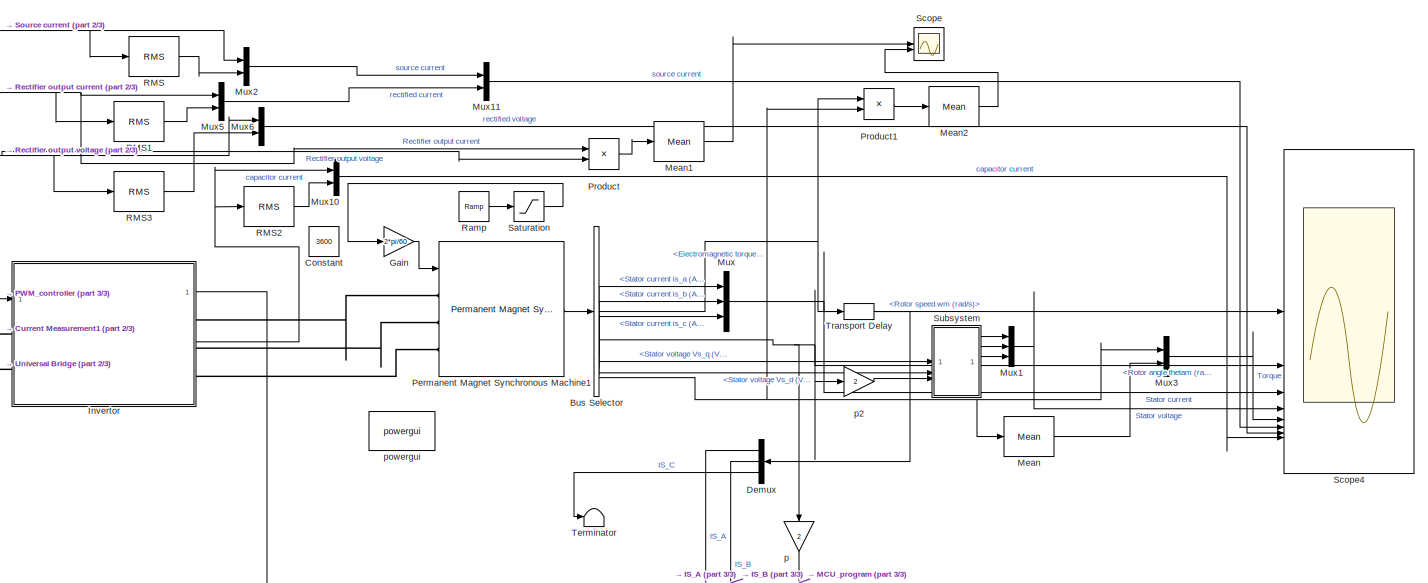
[diagram: root canvas - part 1/3, top right region]
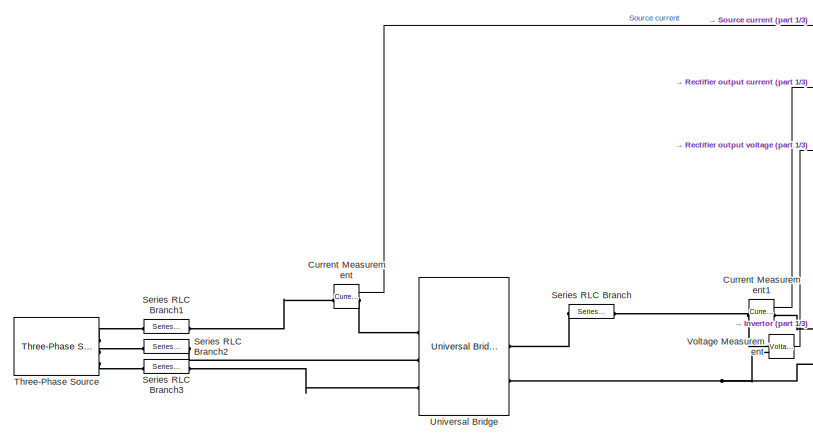
[diagram: root canvas - part 2/3, top left region]
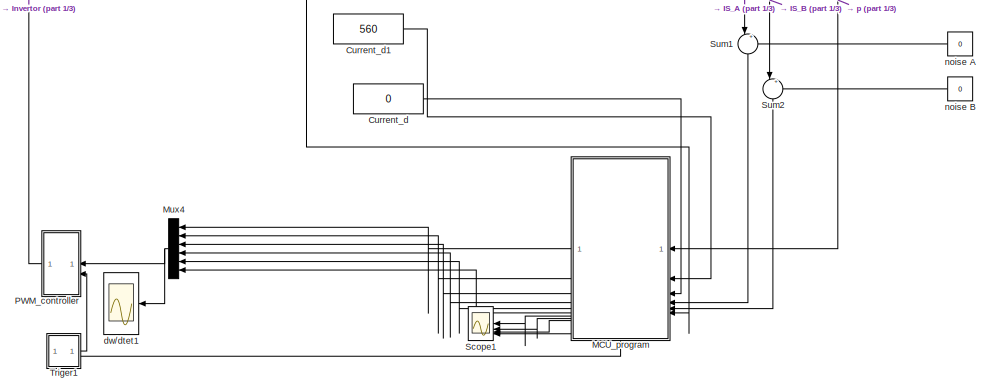
[diagram: root canvas - part 3/3, bottom center region]
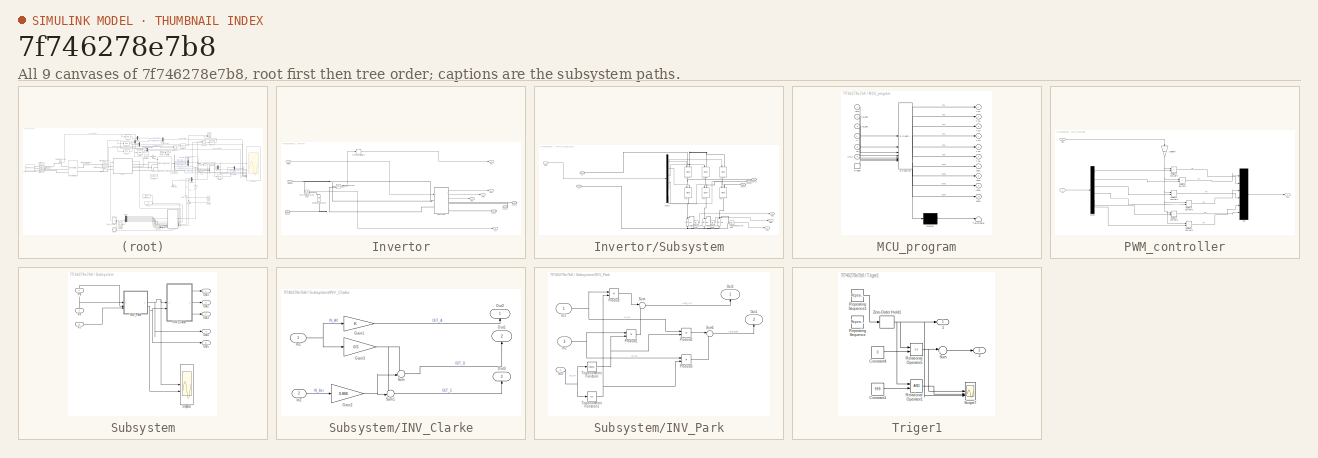
[diagram: thumbnail index - all 9 canvases of the model, root first then tree order]
MODEL slx_7f746278e7b8
KIND model
CONFIG AbsTol = auto
CONFIG EnableMultiTasking = on
CONFIG FixedStep = auto
CONFIG MaxStep = 1e-7
CONFIG MinStep = auto
CONFIG RelTol = 1e-3
CONFIG SampleTimeConstraint = Unconstrained
CONFIG SolverName = ode23tb
CONFIG StartTime = 0.0
CONFIG StopTime = 0.25
BLOCK [BusSelector] Bus Selector
  OutputSignals = Rotor speed wm (rad/s),Rotor angle thetam (rad),Stator current is_a (A),Stator current is_b (A),Stator current is_c (A),Stator voltage Vs_q (V),Stator voltage Vs_d (V),Electromagnetic torque Te (N*m)
BLOCK [Constant] Constant
  Value = 3600
BLOCK [Reference] Current Measurement  REF=spsCurrentMeasurementLib/Current Measurement
  SourceBlock = spsCurrentMeasurementLib/Current Measurement
  SourceType = Current Measurement
  UserDataPersistent = on
BLOCK [Reference] Current Measurement1  REF=spsCurrentMeasurementLib/Current Measurement
  SourceBlock = spsCurrentMeasurementLib/Current Measurement
  SourceType = Current Measurement
  UserDataPersistent = on
BLOCK [Constant] Current_d
  Value = 0
BLOCK [Constant] Current_d1
  Value = 560
BLOCK [Demux] Demux
  NameLocation = top
  Outputs = 3
BLOCK [Gain] Gain
  Gain = 2*pi/60
BLOCK [SubSystem] Invertor
BLOCK [PMIOPort] Invertor/Conn1
  Side = Right
BLOCK [PMIOPort] Invertor/Conn2
  Port = 2
  Side = Right
BLOCK [PMIOPort] Invertor/Conn3
  Port = 3
  Side = Right
BLOCK [PMIOPort] Invertor/Conn4
  NameLocation = top
  Port = 4
  Side = Left
BLOCK [PMIOPort] Invertor/Conn5
  NameLocation = top
  Port = 5
  Side = Left
BLOCK [Reference] Invertor/Current Measurement1  REF=spsCurrentMeasurementLib/Current Measurement
  SourceBlock = spsCurrentMeasurementLib/Current Measurement
  SourceType = Current Measurement
  UserDataPersistent = on
BLOCK [Inport] Invertor/Gates
BLOCK [Outport] Invertor/I_C
  Port = 5
  VectorParamsAs1DForOutWhenUnconnected = off
BLOCK [Reference] Invertor/Series RLC Branch  REF=spsSeriesRLCBranchLib/Series RLC Branch
  NameLocation = left
  SourceBlock = spsSeriesRLCBranchLib/Series RLC Branch
  SourceType = Series RLC Branch
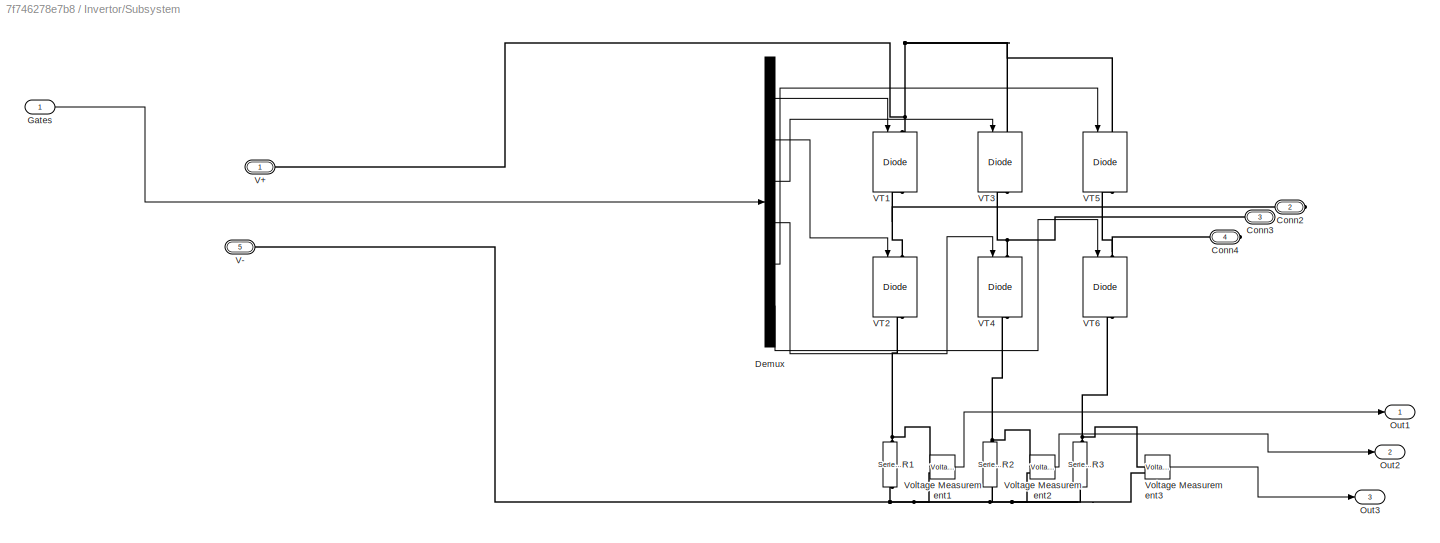
BLOCK [SubSystem] Invertor/Subsystem
BLOCK [PMIOPort] Invertor/Subsystem/Conn2
  Port = 2
  Side = Right
BLOCK [PMIOPort] Invertor/Subsystem/Conn3
  Port = 3
  Side = Right
BLOCK [PMIOPort] Invertor/Subsystem/Conn4
  Port = 4
  Side = Right
BLOCK [Demux] Invertor/Subsystem/Demux
  Outputs = 6
BLOCK [Inport] Invertor/Subsystem/Gates
BLOCK [Outport] Invertor/Subsystem/Out1
  VectorParamsAs1DForOutWhenUnconnected = off
BLOCK [Outport] Invertor/Subsystem/Out2
  Port = 2
  VectorParamsAs1DForOutWhenUnconnected = off
BLOCK [Outport] Invertor/Subsystem/Out3
  Port = 3
  VectorParamsAs1DForOutWhenUnconnected = off
BLOCK [Reference] Invertor/Subsystem/R1  REF=spsSeriesRLCBranchLib/Series RLC Branch
  NameLocation = right
  SourceBlock = spsSeriesRLCBranchLib/Series RLC Branch
  SourceType = Series RLC Branch
BLOCK [Reference] Invertor/Subsystem/R2  REF=spsSeriesRLCBranchLib/Series RLC Branch
  NameLocation = right
  SourceBlock = spsSeriesRLCBranchLib/Series RLC Branch
  SourceType = Series RLC Branch
BLOCK [Reference] Invertor/Subsystem/R3  REF=spsSeriesRLCBranchLib/Series RLC Branch
  NameLocation = right
  SourceBlock = spsSeriesRLCBranchLib/Series RLC Branch
  SourceType = Series RLC Branch
BLOCK [PMIOPort] Invertor/Subsystem/V+
  Side = Left
BLOCK [PMIOPort] Invertor/Subsystem/V-
  Port = 5
  Side = Left
BLOCK [Reference] Invertor/Subsystem/VT1  REF=spsIGBTDiodeLib/IGBT//Diode
  NameLocation = left
  SourceBlock = spsIGBTDiodeLib/IGBT//Diode
  SourceType = IGBT/Diode
BLOCK [Reference] Invertor/Subsystem/VT2  REF=spsIGBTDiodeLib/IGBT//Diode
  NameLocation = left
  SourceBlock = spsIGBTDiodeLib/IGBT//Diode
  SourceType = IGBT/Diode
BLOCK [Reference] Invertor/Subsystem/VT3  REF=spsIGBTDiodeLib/IGBT//Diode
  NameLocation = left
  SourceBlock = spsIGBTDiodeLib/IGBT//Diode
  SourceType = IGBT/Diode
BLOCK [Reference] Invertor/Subsystem/VT4  REF=spsIGBTDiodeLib/IGBT//Diode
  NameLocation = left
  SourceBlock = spsIGBTDiodeLib/IGBT//Diode
  SourceType = IGBT/Diode
BLOCK [Reference] Invertor/Subsystem/VT5  REF=spsIGBTDiodeLib/IGBT//Diode
  NameLocation = left
  SourceBlock = spsIGBTDiodeLib/IGBT//Diode
  SourceType = IGBT/Diode
BLOCK [Reference] Invertor/Subsystem/VT6  REF=spsIGBTDiodeLib/IGBT//Diode
  NameLocation = left
  SourceBlock = spsIGBTDiodeLib/IGBT//Diode
  SourceType = IGBT/Diode
BLOCK [Reference] Invertor/Subsystem/Voltage Measurement1  REF=spsVoltageMeasurementLib/Voltage Measurement
  SourceBlock = spsVoltageMeasurementLib/Voltage Measurement
  SourceType = Voltage Measurement
  UserDataPersistent = on
BLOCK [Reference] Invertor/Subsystem/Voltage Measurement2  REF=spsVoltageMeasurementLib/Voltage Measurement
  SourceBlock = spsVoltageMeasurementLib/Voltage Measurement
  SourceType = Voltage Measurement
  UserDataPersistent = on
BLOCK [Reference] Invertor/Subsystem/Voltage Measurement3  REF=spsVoltageMeasurementLib/Voltage Measurement
  SourceBlock = spsVoltageMeasurementLib/Voltage Measurement
  SourceType = Voltage Measurement
  UserDataPersistent = on
BLOCK [TransportDelay] Invertor/Transport Delay1
  DelayTime = 26e-6
BLOCK [Outport] Invertor/URA
  Port = 2
  VectorParamsAs1DForOutWhenUnconnected = off
BLOCK [Outport] Invertor/URB
  Port = 3
  VectorParamsAs1DForOutWhenUnconnected = off
BLOCK [Outport] Invertor/URC
  Port = 4
  VectorParamsAs1DForOutWhenUnconnected = off
BLOCK [Outport] Invertor/Vdc
  VectorParamsAs1DForOutWhenUnconnected = off
BLOCK [Reference] Invertor/Voltage Measurement  REF=spsVoltageMeasurementLib/Voltage Measurement
  SourceBlock = spsVoltageMeasurementLib/Voltage Measurement
  SourceType = Voltage Measurement
  UserDataPersistent = on
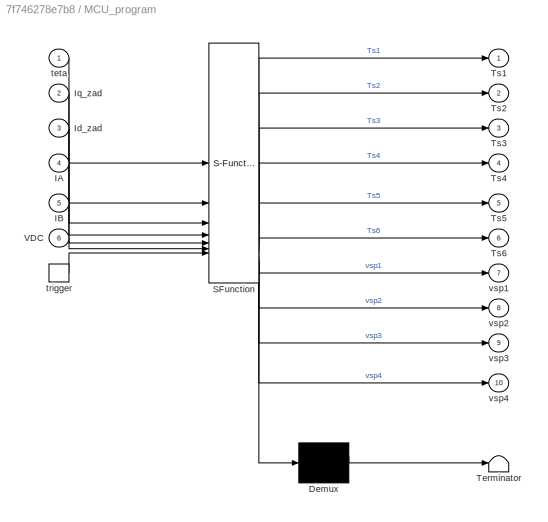
BLOCK [SubSystem] MCU_program
  ErrorFcn = Stateflow.Translate.translate
  NameLocation = top
  PermitHierarchicalResolution = ExplicitOnly
  SFBlockType = MATLAB Function
  TreatAsAtomicUnit = on
BLOCK [Demux] MCU_program/ Demux 
  Outputs = 1
BLOCK [S-Function] MCU_program/ SFunction 
  EnableBusSupport = off
  FunctionName = sf_sfun
  PortCounts = [7 11]
  SFcnIsStateOwnerBlock = off
  SFunctionDeploymentMode = off
  Tag = Stateflow S-Function 3
BLOCK [Terminator] MCU_program/ Terminator 
BLOCK [Inport] MCU_program/IA
  Port = 4
BLOCK [Inport] MCU_program/IB
  Port = 5
BLOCK [Inport] MCU_program/Id_zad
  Port = 3
BLOCK [Inport] MCU_program/Iq_zad
  Port = 2
BLOCK [Outport] MCU_program/Ts1
  VectorParamsAs1DForOutWhenUnconnected = off
BLOCK [Outport] MCU_program/Ts2
  Port = 2
  VectorParamsAs1DForOutWhenUnconnected = off
BLOCK [Outport] MCU_program/Ts3
  Port = 3
  VectorParamsAs1DForOutWhenUnconnected = off
BLOCK [Outport] MCU_program/Ts4
  Port = 4
BLOCK [Outport] MCU_program/Ts5
  Port = 5
BLOCK [Outport] MCU_program/Ts6
  Port = 6
BLOCK [Inport] MCU_program/VDC
  Port = 6
BLOCK [Inport] MCU_program/teta
BLOCK [TriggerPort] MCU_program/trigger
  ShowOutputPort = on
  StatesWhenEnabling = held
  VariantControl = (inherit)
BLOCK [Outport] MCU_program/vsp1
  Port = 7
  VectorParamsAs1DForOutWhenUnconnected = off
BLOCK [Outport] MCU_program/vsp2
  Port = 8
  VectorParamsAs1DForOutWhenUnconnected = off
BLOCK [Outport] MCU_program/vsp3
  Port = 9
  VectorParamsAs1DForOutWhenUnconnected = off
BLOCK [Outport] MCU_program/vsp4
  Port = 10
  VectorParamsAs1DForOutWhenUnconnected = off
BLOCK [Reference] Mean  REF=spsMeanLib/Mean
  SourceBlock = spsMeanLib/Mean
  SourceType = Mean
BLOCK [Reference] Mean1  REF=spsMeanLib/Mean
  LibrarySourceBlock = sps_lib/Sensors and Measurements/Mean
  SourceBlock = spsMeanLib/Mean
  SourceType = Mean
BLOCK [Reference] Mean2  REF=spsMeanLib/Mean
  LibrarySourceBlock = sps_lib/Sensors and Measurements/Mean
  SourceBlock = spsMeanLib/Mean
  SourceType = Mean
BLOCK [Mux] Mux
  DisplayOption = bar
  Inputs = 3
BLOCK [Mux] Mux1
  DisplayOption = bar
  Inputs = 3
BLOCK [Mux] Mux10
  DisplayOption = bar
  Inputs = 2
  NameLocation = left
BLOCK [Mux] Mux11
  DisplayOption = bar
  Inputs = 2
BLOCK [Mux] Mux2
  DisplayOption = bar
  Inputs = 2
BLOCK [Mux] Mux3
  DisplayOption = bar
  Inputs = 2
BLOCK [Mux] Mux4
  DisplayOption = bar
  Inputs = 6
  NameLocation = top
BLOCK [Mux] Mux5
  DisplayOption = bar
  Inputs = 2
BLOCK [Mux] Mux6
  DisplayOption = bar
  Inputs = 2
BLOCK [SubSystem] PWM_controller
  NameLocation = top
BLOCK [Gain] PWM_controller/Coefficient
  Gain = 0.001
  NameLocation = left
BLOCK [Demux] PWM_controller/Demux
  Outputs = 6
BLOCK [Mux] PWM_controller/Mux
  DisplayOption = bar
  Inputs = 6
BLOCK [RelationalOperator] PWM_controller/Relational Operator1
  InputSameDT = off
  Operator = <
  OutDataTypeStr = boolean
BLOCK [RelationalOperator] PWM_controller/Relational Operator2
  InputSameDT = off
  Operator = >
  OutDataTypeStr = boolean
BLOCK [RelationalOperator] PWM_controller/Relational Operator3
  InputSameDT = off
  Operator = >
  OutDataTypeStr = boolean
BLOCK [RelationalOperator] PWM_controller/Relational Operator4
  InputSameDT = off
  Operator = >
  OutDataTypeStr = boolean
BLOCK [RelationalOperator] PWM_controller/Relational Operator5
  InputSameDT = off
  Operator = <
  OutDataTypeStr = boolean
BLOCK [RelationalOperator] PWM_controller/Relational Operator6
  InputSameDT = off
  Operator = <
  OutDataTypeStr = boolean
BLOCK [Inport] PWM_controller/Ts
BLOCK [Outport] PWM_controller/Tss
  VectorParamsAs1DForOutWhenUnconnected = off
BLOCK [Inport] PWM_controller/pila
  Port = 2
BLOCK [Reference] Permanent Magnet Synchronous Machine1  REF=spsPermanentMagnetSynchronousMachineLib/Permanent Magnet
Synchronous Machine
  SourceBlock = spsPermanentMagnetSynchronousMachineLib/Permanent Magnet\nSynchronous Machine
  SourceType = Permanent Magnet Synchronous Machine
BLOCK [Product] Product
BLOCK [Product] Product1
BLOCK [Reference] RMS  REF=spsRMSLib/RMS
  SourceBlock = spsRMSLib/RMS
  SourceType = RMS
BLOCK [Reference] RMS1  REF=spsRMSLib/RMS
  SourceBlock = spsRMSLib/RMS
  SourceType = RMS
BLOCK [Reference] RMS2  REF=spsRMSLib/RMS
  SourceBlock = spsRMSLib/RMS
  SourceType = RMS
BLOCK [Reference] RMS3  REF=spsRMSLib/RMS
  SourceBlock = spsRMSLib/RMS
  SourceType = RMS
BLOCK [Reference] Ramp  REF=simulink/Sources/Ramp
  SourceBlock = simulink/Sources/Ramp
  SourceType = Ramp
BLOCK [Saturate] Saturation
  UpperLimit = 5600
BLOCK [Scope] Scope
  ActiveDisplayYMaximum = 14122.666503779585
  ActiveDisplayYMinimum = -1570.706414842937
  DataLoggingVariableName = ScopeData1
  Floating = off
  GraphicalSettings = {"Style":{"BackgroundColor":[0.12941176470588237,0.12941176470588237,0.12941176470588237],"AxesColor":[0.07058823529411765,0.07058823529411765,0.07058823529411765],"LabelsColor":[0.8509803921568627,0.8509803921568627,0.8509803921568627],"PreserveColors":false,"Visible":[true,true],"LineStyle":["-","-"],"LineWidth":[1.5,1.5],"BarWidth":[0.9,0.9],"LineColor":["auto","auto"],"LineFaceAlpha":[1,1],"Li...<+2051ch>
  MultipleDisplayCache = [{"MaxYLimMag":14122.666503779585,"MaxYLimReal":14122.666503779585,"MinYLimMag":0,"MinYLimReal":-1570.706414842937,"PlotAsMagnitudePhase":false,"ShowGrid":true,"ShowLegend":false,"Title":"%<SignalLabel>","YLabel":""}]
  NumInputPorts = 2
  ScopeFrameLocation = window
  WasSavedAsWebScope = on
  WindowPosition = [527.000000,281.000000,723.000000,480.000000,]
BLOCK [Scope] Scope1
  ActiveDisplayYMaximum = 1
  ActiveDisplayYMinimum = -1
  DataLoggingDecimateData = on
  DataLoggingDecimation = 1
  DataLoggingSaveFormat = Structure With Time
  DataLoggingVariableName = ScopeData1
  Floating = off
  GraphicalSettings = {"GraphicalSettings":{"LegacySettings":true,"Style":{"AxesScalingProperties":{"ScaleAxesLimitsAtStop":false},"Style":{"AxesColor":"[1 1 1]","BackgroundColor":"[1 1 1]","ChannelNames":["","","",""],"ColorOrder":"[0 0.447058823529412 0.741176470588235;0.850980392156863 0.325490196078431 0.0980392156862745;0.929411764705882 0.694117647058824 0.125490196078431;0.494117647058824 0.184313725490196 0.556...<+961ch>
  LayoutDimensionsString = [4 1]
  MultipleDisplayCache = [{"MaxYLimMag":1,"MaxYLimReal":1,"MinYLimMag":0,"MinYLimReal":-1,"PlotAsMagnitudePhase":false,"ShowGrid":true,"ShowLegend":false,"Title":"%<SignalLabel>","YLabel":""},{"MaxYLimMag":1.2515656757413207E+159,"MaxYLimReal":1,"MinYLimMag":0,"MinYLimReal":-1,"PlotAsMagnitudePhase":false,"ShowGrid":true,"ShowLegend":false,"Title":"%<SignalLabel>","YLabel":""},{"MaxYLimMag":1.2515656757413207E+159,"MaxYLi...<+323ch>
  NameLocation = top
  NumInputPorts = 4
  TimeSpan = 0.3
  WasSavedAsWebScope = on
BLOCK [Scope] Scope4
  ActiveDisplayYMaximum = 371.94865
  ActiveDisplayYMinimum = -41.32763
  DataLogging = on
  DataLoggingDecimation = 1
  DataLoggingSaveFormat = Structure With Time
  DataLoggingVariableName = SD2
  Floating = off
  GraphicalSettings = {"GraphicalSettings":{"LegacySettings":true,"Style":{"AxesScalingProperties":{"ScaleAxesLimitsAtStop":false},"Style":{"AxesColor":"[0.313725490196078 0.313725490196078 0.313725490196078]","BackgroundColor":"[0.247058823529412 0.247058823529412 0.247058823529412]","ChannelNames":["","","","","","","",""],"ColorOrder":"[0.0666666666666667 0.443137254901961 0.745098039215686;0.866666666666667 0.32941...<+2649ch>
  LayoutDimensionsString = [4 2]
  MultipleDisplayCache = [{"MaxYLimMag":371.94865,"MaxYLimReal":371.94865,"MinYLimMag":0,"MinYLimReal":-41.32763,"PlotAsMagnitudePhase":false,"ShowGrid":true,"ShowLegend":false,"Title":"%<SignalLabel>","YLabel":""},{"MaxYLimMag":10,"MaxYLimReal":16.30994,"MinYLimMag":0,"MinYLimReal":-1.81222,"PlotAsMagnitudePhase":false,"ShowGrid":true,"ShowLegend":false,"Title":"%<SignalLabel>","YLabel":""},{"MaxYLimMag":11.80662,"MaxYLi...<+1042ch>
  NumInputPorts = 8
  ScopeFrameLocation = window
  TimeSpan = 0.3
  Visible = on
  WasSavedAsWebScope = on
  WindowPosition = [1107.000000,50.000000,814.000000,936.000000,]
BLOCK [Reference] Series RLC Branch  REF=spsSeriesRLCBranchLib/Series RLC Branch
  NameLocation = top
  SourceBlock = spsSeriesRLCBranchLib/Series RLC Branch
  SourceType = Series RLC Branch
BLOCK [Reference] Series RLC Branch1  REF=spsSeriesRLCBranchLib/Series RLC Branch
  NameLocation = top
  SourceBlock = spsSeriesRLCBranchLib/Series RLC Branch
  SourceType = Series RLC Branch
BLOCK [Reference] Series RLC Branch2  REF=spsSeriesRLCBranchLib/Series RLC Branch
  NameLocation = top
  SourceBlock = spsSeriesRLCBranchLib/Series RLC Branch
  SourceType = Series RLC Branch
BLOCK [Reference] Series RLC Branch3  REF=spsSeriesRLCBranchLib/Series RLC Branch
  NameLocation = top
  SourceBlock = spsSeriesRLCBranchLib/Series RLC Branch
  SourceType = Series RLC Branch
BLOCK [SubSystem] Subsystem
BLOCK [Inport] Subsystem/Fi
  Port = 3
BLOCK [SubSystem] Subsystem/INV_Clarke
BLOCK [Gain] Subsystem/INV_Clarke/Gain1
BLOCK [Gain] Subsystem/INV_Clarke/Gain2
  Gain = 0.866
BLOCK [Gain] Subsystem/INV_Clarke/Gain3
  Gain = 0.5
BLOCK [Inport] Subsystem/INV_Clarke/In1
  IconDisplay = Signal name
BLOCK [Inport] Subsystem/INV_Clarke/In2
  IconDisplay = Signal name
  Port = 2
BLOCK [Outport] Subsystem/INV_Clarke/Out1
  IconDisplay = Signal name
  NameLocation = right
  Port = 2
  VectorParamsAs1DForOutWhenUnconnected = off
BLOCK [Outport] Subsystem/INV_Clarke/Out2
  IconDisplay = Signal name
  NameLocation = right
  VectorParamsAs1DForOutWhenUnconnected = off
BLOCK [Outport] Subsystem/INV_Clarke/Out3
  IconDisplay = Signal name
  NameLocation = right
  Port = 3
  VectorParamsAs1DForOutWhenUnconnected = off
BLOCK [Sum] Subsystem/INV_Clarke/Sum
  Inputs = -+|
BLOCK [Sum] Subsystem/INV_Clarke/Sum1
  Inputs = --|
BLOCK [SubSystem] Subsystem/INV_Park
BLOCK [Inport] Subsystem/INV_Park/In1
  IconDisplay = Signal name
BLOCK [Inport] Subsystem/INV_Park/In2
  IconDisplay = Signal name
  Port = 2
BLOCK [Inport] Subsystem/INV_Park/In3
  IconDisplay = Signal name
  Port = 3
BLOCK [Outport] Subsystem/INV_Park/Out1
  IconDisplay = Signal name
  NameLocation = right
  Port = 2
  VectorParamsAs1DForOutWhenUnconnected = off
BLOCK [Outport] Subsystem/INV_Park/Out2
  IconDisplay = Signal name
  NameLocation = right
  VectorParamsAs1DForOutWhenUnconnected = off
BLOCK [Product] Subsystem/INV_Park/Product
BLOCK [Product] Subsystem/INV_Park/Product1
BLOCK [Product] Subsystem/INV_Park/Product2
BLOCK [Product] Subsystem/INV_Park/Product3
BLOCK [Sum] Subsystem/INV_Park/Sum
  Inputs = |+-
BLOCK [Sum] Subsystem/INV_Park/Sum1
  Inputs = |++
BLOCK [Trigonometry] Subsystem/INV_Park/Trigonometric Function
BLOCK [Trigonometry] Subsystem/INV_Park/Trigonometric Function1
  Operator = cos
BLOCK [Outport] Subsystem/Out1
  VectorParamsAs1DForOutWhenUnconnected = off
BLOCK [Outport] Subsystem/Out2
  Port = 2
  VectorParamsAs1DForOutWhenUnconnected = off
BLOCK [Outport] Subsystem/Out3
  Port = 3
  VectorParamsAs1DForOutWhenUnconnected = off
BLOCK [Outport] Subsystem/Out4
  Port = 4
  VectorParamsAs1DForOutWhenUnconnected = off
BLOCK [Outport] Subsystem/Out5
  Port = 5
  VectorParamsAs1DForOutWhenUnconnected = off
BLOCK [Scope] Subsystem/Scope13
  ActiveDisplayYMaximum = -3.39167
  ActiveDisplayYMinimum = -3.44167
  DataLoggingDecimateData = on
  DataLoggingDecimation = 1
  DataLoggingSaveFormat = Structure With Time
  DataLoggingVariableName = ScopeData1
  Floating = off
  GraphicalSettings = {"GraphicalSettings":{"LegacySettings":true,"Style":{"AxesScalingProperties":{"ScaleAxesLimitsAtStop":false},"Style":{"AxesColor":"[1 1 1]","BackgroundColor":"[1 1 1]","ChannelNames":["","",""],"ColorOrder":"[0 0.447058823529412 0.741176470588235;0.850980392156863 0.325490196078431 0.0980392156862745;0.929411764705882 0.694117647058824 0.125490196078431;0.494117647058824 0.184313725490196 0.556862...<+886ch>
  LayoutDimensionsString = [3 1]
  MultipleDisplayCache = [{"MaxYLimMag":3.44167,"MaxYLimReal":-3.39167,"MinYLimMag":0,"MinYLimReal":-3.44167,"PlotAsMagnitudePhase":false,"ShowGrid":true,"ShowLegend":false,"Title":"%<SignalLabel>","YLabel":""},{"MaxYLimMag":6837.01584,"MaxYLimReal":-1.72772,"MinYLimMag":0,"MinYLimReal":-1.77102,"PlotAsMagnitudePhase":false,"ShowGrid":true,"ShowLegend":false,"Title":"%<SignalLabel>","YLabel":""},{"MaxYLimMag":6837.01584,"...<+149ch>
  NumInputPorts = 3
  TimeSpan = 0.3
  WasSavedAsWebScope = on
BLOCK [Inport] Subsystem/Vd
  NameLocation = right
  Port = 2
BLOCK [Inport] Subsystem/Vq
  NameLocation = right
BLOCK [Sum] Sum1
  Inputs = |++
  NameLocation = left
BLOCK [Sum] Sum2
  Inputs = |++
  NameLocation = left
BLOCK [Terminator] Terminator
BLOCK [Reference] Three-Phase Source  REF=spsThreePhaseSourceLib/Three-Phase Source
  SourceBlock = spsThreePhaseSourceLib/Three-Phase Source
  SourceType = Three-Phase Source
BLOCK [TransportDelay] Transport Delay
  DelayTime = 5e-6
BLOCK [SubSystem] Triger1
BLOCK [Outport] Triger1/1
  VectorParamsAs1DForOutWhenUnconnected = off
BLOCK [Outport] Triger1/2
  Port = 2
  VectorParamsAs1DForOutWhenUnconnected = off
BLOCK [Constant] Triger1/Constant1
  Value = 999
BLOCK [Constant] Triger1/Constant4
  Value = 0
BLOCK [RelationalOperator] Triger1/Relational Operator1
  InputSameDT = off
  OutDataTypeStr = boolean
BLOCK [RelationalOperator] Triger1/Relational Operator5
  InputSameDT = off
  Operator = ==
  OutDataTypeStr = boolean
BLOCK [Reference] Triger1/Repeating Sequence  REF=simulink/Sources/Repeating
Sequence
  SourceBlock = simulink/Sources/Repeating\nSequence
  SourceType = Repeating table
BLOCK [Reference] Triger1/Repeating Sequence1  REF=simulink/Sources/Repeating
Sequence
  SourceBlock = simulink/Sources/Repeating\nSequence
  SourceType = Repeating table
BLOCK [Scope] Triger1/Scope7
  ActiveDisplayYMaximum = 1.01857
  ActiveDisplayYMinimum = -0.06839
  DataLoggingVariableName = ScopeData2
  Floating = off
  GraphicalSettings = {"GraphicalSettings":{"LegacySettings":true,"Style":{"AxesScalingProperties":{"ScaleAxesLimitsAtStop":false},"Style":{"AxesColor":"[0 0 0]","ChannelNames":["","",""],"ColorOrder":"[1 1 0.0666666666666667;0.0745098039215686 0.623529411764706 1;1 0.411764705882353 0.16078431372549;0.392156862745098 0.831372549019608 0.0745098039215686;0.717647058823529 0.274509803921569 1;0.0588235294117647 1 1;1 0....<+517ch>
  LayoutDimensionsString = [3 1]
  MultipleDisplayCache = [{"MaxYLimMag":1.01857,"MaxYLimReal":1.01857,"MinYLimMag":0,"MinYLimReal":-0.06839,"PlotAsMagnitudePhase":false,"ShowGrid":true,"ShowLegend":false,"Title":"%<SignalLabel>","YLabel":""},{"MaxYLimMag":1.125,"MaxYLimReal":1.125,"MinYLimMag":0,"MinYLimReal":-0.125,"PlotAsMagnitudePhase":false,"ShowGrid":true,"ShowLegend":false,"Title":"%<SignalLabel>","YLabel":""},{"MaxYLimMag":1.125,"MaxYLimReal":112...<+138ch>
  NumInputPorts = 3
  WasSavedAsWebScope = on
BLOCK [Sum] Triger1/Sum
  Inputs = |++
BLOCK [ZeroOrderHold] Triger1/Zero-Order Hold1
  SampleTime = 5e-8
BLOCK [Reference] Universal Bridge  REF=spsUniversalBridgeLib/Universal Bridge
  SourceBlock = spsUniversalBridgeLib/Universal Bridge
  SourceType = Universal Bridge
BLOCK [Reference] Voltage Measurement  REF=spsVoltageMeasurementLib/Voltage Measurement
  SourceBlock = spsVoltageMeasurementLib/Voltage Measurement
  SourceType = Voltage Measurement
  UserDataPersistent = on
BLOCK [Scope] dw//dtet1
  ActiveDisplayYMaximum = 1.10531
  ActiveDisplayYMinimum = -0.12281
  DataLoggingDecimateData = on
  DataLoggingDecimation = 1
  DataLoggingSaveFormat = Structure With Time
  DataLoggingVariableName = ScopeData3
  Floating = off
  GraphicalSettings = {"GraphicalSettings":{"LegacySettings":true,"Style":{"AxesScalingProperties":{"ScaleAxesLimitsAtStop":false},"Style":{"AxesColor":"[1 1 1]","BackgroundColor":"[1 1 1]","ChannelNames":[""],"ColorOrder":"[0 0.447058823529412 0.741176470588235;0.850980392156863 0.325490196078431 0.0980392156862745;0.929411764705882 0.694117647058824 0.125490196078431;0.494117647058824 0.184313725490196 0.556862745098...<+742ch>
  MultipleDisplayCache = [{"MaxYLimMag":1.10531,"MaxYLimReal":1.10531,"MinYLimMag":0,"MinYLimReal":-0.12281,"PlotAsMagnitudePhase":false,"ShowGrid":true,"ShowLegend":false,"Title":"%<SignalLabel>","YLabel":""}]
  NameLocation = top
  NumInputPorts = 2
  TimeSpan = 0.3
  WasSavedAsWebScope = on
  WindowPosition = [171 142 462 741]
BLOCK [Constant] noise A
  NameLocation = top
  Value = 0
BLOCK [Constant] noise B
  NameLocation = top
  Value = 0
BLOCK [Gain] p
  Gain = 2
  NameLocation = right
BLOCK [Gain] p2
  Gain = 2
  NameLocation = top
BLOCK [Reference] powergui  REF=spspowerguiLib/powergui
  Priority = 1
  SourceBlock = spspowerguiLib/powergui
  SourceType = PSB option menu block
NET Bus Selector:1 -> Product1:1, Scope4:1
NET Bus Selector:2 -> Scope4:2, p2:1, p:1
LINE Bus Selector:3 -> Mux:1
LINE Bus Selector:4 -> Mux:2
LINE Bus Selector:5 -> Mux:3
LINE Bus Selector:6 -> Subsystem:1
LINE Bus Selector:7 -> Subsystem:2
NET Bus Selector:8 -> Mean:1, Mux3:1, Product1:2
NET Current Measurement1:1 -> Mux5:1, Product:1, RMS1:1
NET Current Measurement:1 -> Mux2:1, RMS:1
LINE Current_d1:1 -> MCU_program:2
LINE Current_d:1 -> MCU_program:3
LINE Demux:1 -> Sum1:1
LINE Demux:2 -> Sum2:1
LINE Demux:3 -> Terminator:1
LINE Gain:1 -> Permanent Magnet Synchronous Machine1:1
LINE Invertor/Current Measurement1:1 -> Invertor/I_C:1
LINE Invertor/Gates:1 -> Invertor/Subsystem:1
LINE Invertor/Subsystem/Demux:1 -> Invertor/Subsystem/VT1:1
LINE Invertor/Subsystem/Demux:2 -> Invertor/Subsystem/VT2:1
LINE Invertor/Subsystem/Demux:3 -> Invertor/Subsystem/VT3:1
LINE Invertor/Subsystem/Demux:4 -> Invertor/Subsystem/VT4:1
LINE Invertor/Subsystem/Demux:5 -> Invertor/Subsystem/VT5:1
LINE Invertor/Subsystem/Demux:6 -> Invertor/Subsystem/VT6:1
LINE Invertor/Subsystem/Gates:1 -> Invertor/Subsystem/Demux:1
LINE Invertor/Subsystem/Voltage Measurement1:1 -> Invertor/Subsystem/Out1:1
LINE Invertor/Subsystem/Voltage Measurement2:1 -> Invertor/Subsystem/Out2:1
LINE Invertor/Subsystem/Voltage Measurement3:1 -> Invertor/Subsystem/Out3:1
LINE Invertor/Subsystem:1 -> Invertor/URA:1
LINE Invertor/Subsystem:2 -> Invertor/URB:1
LINE Invertor/Subsystem:3 -> Invertor/URC:1
LINE Invertor/Transport Delay1:1 -> Invertor/Vdc:1
LINE Invertor/Voltage Measurement:1 -> Invertor/Transport Delay1:1
LINE Invertor:1 -> MCU_program:6
NET Invertor:5 -> Mux10:1, RMS2:1
LINE MCU_program:1 -> Mux4:1
LINE MCU_program:10 -> Scope1:4
LINE MCU_program:2 -> Mux4:2
LINE MCU_program:3 -> Mux4:3
LINE MCU_program:4 -> Mux4:4
LINE MCU_program:5 -> Mux4:5
LINE MCU_program:6 -> Mux4:6
LINE MCU_program:7 -> Scope1:1
LINE MCU_program:8 -> Scope1:2
LINE MCU_program:9 -> Scope1:3
LINE Mean1:1 -> Scope:1
LINE Mean2:1 -> Scope:2
LINE Mean:1 -> Mux3:2
LINE Mux10:1 -> Scope4:8
LINE Mux11:1 -> Scope4:6
LINE Mux1:1 -> Scope4:4
LINE Mux2:1 -> Mux11:1
LINE Mux3:1 -> Scope4:5
NET Mux4:1 -> PWM_controller:1, dw//dtet1:1
LINE Mux5:1 -> Mux11:2
LINE Mux6:1 -> Scope4:7
NET Mux:1 -> Scope4:3, Transport Delay:1
NET PWM_controller/Coefficient:1 -> PWM_controller/Relational Operator1:1, PWM_controller/Relational Operator2:1, PWM_controller/Relational Operator3:1, PWM_controller/Relational Operator4:1, PWM_controller/Relational Operator5:1, PWM_controller/Relational Operator6:1
LINE PWM_controller/Demux:1 -> PWM_controller/Relational Operator4:2
LINE PWM_controller/Demux:2 -> PWM_controller/Relational Operator1:2
LINE PWM_controller/Demux:3 -> PWM_controller/Relational Operator3:2
LINE PWM_controller/Demux:4 -> PWM_controller/Relational Operator5:2
LINE PWM_controller/Demux:5 -> PWM_controller/Relational Operator2:2
LINE PWM_controller/Demux:6 -> PWM_controller/Relational Operator6:2
LINE PWM_controller/Mux:1 -> PWM_controller/Tss:1
LINE PWM_controller/Relational Operator1:1 -> PWM_controller/Mux:1
LINE PWM_controller/Relational Operator2:1 -> PWM_controller/Mux:6
LINE PWM_controller/Relational Operator3:1 -> PWM_controller/Mux:4
LINE PWM_controller/Relational Operator4:1 -> PWM_controller/Mux:2
LINE PWM_controller/Relational Operator5:1 -> PWM_controller/Mux:3
LINE PWM_controller/Relational Operator6:1 -> PWM_controller/Mux:5
LINE PWM_controller/Ts:1 -> PWM_controller/Demux:1
LINE PWM_controller/pila:1 -> PWM_controller/Coefficient:1
LINE PWM_controller:1 -> Invertor:1
LINE Permanent Magnet Synchronous Machine1:1 -> Bus Selector:1
LINE Product1:1 -> Mean2:1
LINE Product:1 -> Mean1:1
LINE RMS1:1 -> Mux5:2
LINE RMS2:1 -> Mux10:2
LINE RMS3:1 -> Mux6:2
LINE RMS:1 -> Mux2:2
LINE Ramp:1 -> Saturation:1
LINE Saturation:1 -> Gain:1
LINE Subsystem/Fi:1 -> Subsystem/INV_Park:3
LINE Subsystem/INV_Clarke/Gain1:1 -> Subsystem/INV_Clarke/Out2:1
NET Subsystem/INV_Clarke/Gain2:1 -> Subsystem/INV_Clarke/Sum1:2, Subsystem/INV_Clarke/Sum:2
NET Subsystem/INV_Clarke/Gain3:1 -> Subsystem/INV_Clarke/Sum1:1, Subsystem/INV_Clarke/Sum:1
NET Subsystem/INV_Clarke/In1:1 -> Subsystem/INV_Clarke/Gain1:1, Subsystem/INV_Clarke/Gain3:1
LINE Subsystem/INV_Clarke/In2:1 -> Subsystem/INV_Clarke/Gain2:1
LINE Subsystem/INV_Clarke/Sum1:1 -> Subsystem/INV_Clarke/Out3:1
LINE Subsystem/INV_Clarke/Sum:1 -> Subsystem/INV_Clarke/Out1:1
LINE Subsystem/INV_Clarke:1 -> Subsystem/Out1:1
LINE Subsystem/INV_Clarke:2 -> Subsystem/Out2:1
LINE Subsystem/INV_Clarke:3 -> Subsystem/Out3:1
NET Subsystem/INV_Park/In1:1 -> Subsystem/INV_Park/Product2:1, Subsystem/INV_Park/Product:1
NET Subsystem/INV_Park/In2:1 -> Subsystem/INV_Park/Product1:1, Subsystem/INV_Park/Product3:1
NET Subsystem/INV_Park/In3:1 -> Subsystem/INV_Park/Trigonometric Function1:1, Subsystem/INV_Park/Trigonometric Function:1
LINE Subsystem/INV_Park/Product1:1 -> Subsystem/INV_Park/Sum:2
LINE Subsystem/INV_Park/Product2:1 -> Subsystem/INV_Park/Sum1:1
LINE Subsystem/INV_Park/Product3:1 -> Subsystem/INV_Park/Sum1:2
LINE Subsystem/INV_Park/Product:1 -> Subsystem/INV_Park/Sum:1
LINE Subsystem/INV_Park/Sum1:1 -> Subsystem/INV_Park/Out1:1
LINE Subsystem/INV_Park/Sum:1 -> Subsystem/INV_Park/Out2:1
NET Subsystem/INV_Park/Trigonometric Function1:1 -> Subsystem/INV_Park/Product3:2, Subsystem/INV_Park/Product:2
NET Subsystem/INV_Park/Trigonometric Function:1 -> Subsystem/INV_Park/Product1:2, Subsystem/INV_Park/Product2:2
NET Subsystem/INV_Park:1 -> Subsystem/INV_Clarke:1, Subsystem/Out4:1, Subsystem/Scope13:1
NET Subsystem/INV_Park:2 -> Subsystem/INV_Clarke:2, Subsystem/Out5:1, Subsystem/Scope13:2
LINE Subsystem/Vd:1 -> Subsystem/INV_Park:1
LINE Subsystem/Vq:1 -> Subsystem/INV_Park:2
LINE Subsystem:1 -> Mux1:1
LINE Subsystem:2 -> Mux1:2
LINE Subsystem:3 -> Mux1:3
LINE Sum1:1 -> MCU_program:4
LINE Sum2:1 -> MCU_program:5
LINE Transport Delay:1 -> Demux:1
LINE Triger1/Constant1:1 -> Triger1/Relational Operator1:2
LINE Triger1/Constant4:1 -> Triger1/Relational Operator5:2
LINE Triger1/Relational Operator1:1 -> Triger1/Scope7:2
NET Triger1/Relational Operator5:1 -> Triger1/Scope7:1, Triger1/Sum:1
LINE Triger1/Repeating Sequence1:1 -> Triger1/Zero-Order Hold1:1
LINE Triger1/Sum:1 -> Triger1/2:1
NET Triger1/Zero-Order Hold1:1 -> Triger1/1:1, Triger1/Relational Operator1:1, Triger1/Relational Operator5:1, Triger1/Scope7:3
LINE Triger1:1 -> PWM_controller:2
LINE Triger1:2 -> MCU_program:trigger
NET Voltage Measurement:1 -> Mux6:1, Product:2, RMS3:1
LINE noise A:1 -> Sum1:2
LINE noise B:1 -> Sum2:2
LINE p2:1 -> Subsystem:3
LINE p:1 -> MCU_program:1
PNET net1: Current Measurement1:LConn1 -- Series RLC Branch:LConn1 -- Voltage Measurement:LConn1
PLINE Current Measurement1:RConn1 -- Invertor:LConn1
PLINE Current Measurement:LConn1 -- Series RLC Branch1:LConn1
PLINE Current Measurement:RConn1 -- Universal Bridge:LConn1
PLINE Invertor/Conn1:RConn1 -- Invertor/Subsystem:RConn1
PLINE Invertor/Conn2:RConn1 -- Invertor/Subsystem:RConn2
PLINE Invertor/Conn3:RConn1 -- Invertor/Subsystem:RConn3
PNET net2: Invertor/Conn4:RConn1 -- Invertor/Current Measurement1:LConn1 -- Invertor/Subsystem:LConn1 -- Invertor/Voltage Measurement:LConn1
PNET net3: Invertor/Conn5:RConn1 -- Invertor/Series RLC Branch:RConn1 -- Invertor/Subsystem:LConn2 -- Invertor/Voltage Measurement:LConn2
PLINE Invertor/Current Measurement1:RConn1 -- Invertor/Series RLC Branch:LConn1
PNET net4: Invertor/Subsystem/Conn2:RConn1 -- Invertor/Subsystem/VT1:RConn1 -- Invertor/Subsystem/VT2:LConn1
PNET net5: Invertor/Subsystem/Conn3:RConn1 -- Invertor/Subsystem/VT3:RConn1 -- Invertor/Subsystem/VT4:LConn1
PNET net6: Invertor/Subsystem/Conn4:RConn1 -- Invertor/Subsystem/VT5:RConn1 -- Invertor/Subsystem/VT6:LConn1
PNET net7: Invertor/Subsystem/R1:LConn1 -- Invertor/Subsystem/R2:LConn1 -- Invertor/Subsystem/R3:LConn1 -- Invertor/Subsystem/V-:RConn1 -- Invertor/Subsystem/Voltage Measurement1:LConn2 -- Invertor/Subsystem/Voltage Measurement2:LConn2 -- Invertor/Subsystem/Voltage Measurement3:LConn2
PNET net8: Invertor/Subsystem/R1:RConn1 -- Invertor/Subsystem/VT2:RConn1 -- Invertor/Subsystem/Voltage Measurement1:LConn1
PNET net9: Invertor/Subsystem/R2:RConn1 -- Invertor/Subsystem/VT4:RConn1 -- Invertor/Subsystem/Voltage Measurement2:LConn1
PNET net10: Invertor/Subsystem/R3:RConn1 -- Invertor/Subsystem/VT6:RConn1 -- Invertor/Subsystem/Voltage Measurement3:LConn1
PNET net11: Invertor/Subsystem/V+:RConn1 -- Invertor/Subsystem/VT1:LConn1 -- Invertor/Subsystem/VT3:LConn1 -- Invertor/Subsystem/VT5:LConn1
PNET net12: Invertor:LConn2 -- Universal Bridge:RConn2 -- Voltage Measurement:LConn2
PLINE Invertor:RConn1 -- Permanent Magnet Synchronous Machine1:LConn1
PLINE Invertor:RConn2 -- Permanent Magnet Synchronous Machine1:LConn2
PLINE Invertor:RConn3 -- Permanent Magnet Synchronous Machine1:LConn3
PLINE Series RLC Branch1:RConn1 -- Three-Phase Source:RConn1
PLINE Series RLC Branch2:LConn1 -- Universal Bridge:LConn2
PLINE Series RLC Branch2:RConn1 -- Three-Phase Source:RConn2
PLINE Series RLC Branch3:LConn1 -- Universal Bridge:LConn3
PLINE Series RLC Branch3:RConn1 -- Three-Phase Source:RConn3
PLINE Series RLC Branch:RConn1 -- Universal Bridge:RConn1
note: NET lines group one-source signal fan-out (src -> all destinations, sorted); 1:1 wires keep LINE; PNET lines group multi-terminal physical nets as a canonical sorted terminal list (undirected conserving connections); 2-terminal nets keep the pairwise PLINE form
CHART MCU_program states=1 transitions=1
  STATE_LABEL 'eML_blk_kernel()'
  STATE_LABEL 'SCRIPT:\nfunction [Ts1,Ts2,Ts3,Ts4,Ts5,Ts6,vsp1,vsp2,vsp3,vsp4] = fcn(teta,Iq_zad,Id_zad,IA,IB,VDC)\n%время 1/2 ШИМ периода\ndt=100e-6;\n\ndead_time=0;%0.75\n\nkuqp=1;\nkuqi=250;\n\nkudp=1;\nkudi=250;\n\n\n\n\n\npersistent wint;\nif isempty(wint)\n    wint=0;\nend \npersistent Uqint;\nif isempty(Uqint)\n    Uqint=0;\nend \npersistent Udint;\nif isempty(Udint)\n    Udint=0;\nend \n\n\n%Преобразование Кларка\nIalfa=IA;\nIbeta=(2*IB...<+2893ch>'
CHART  states=0 transitions=0
